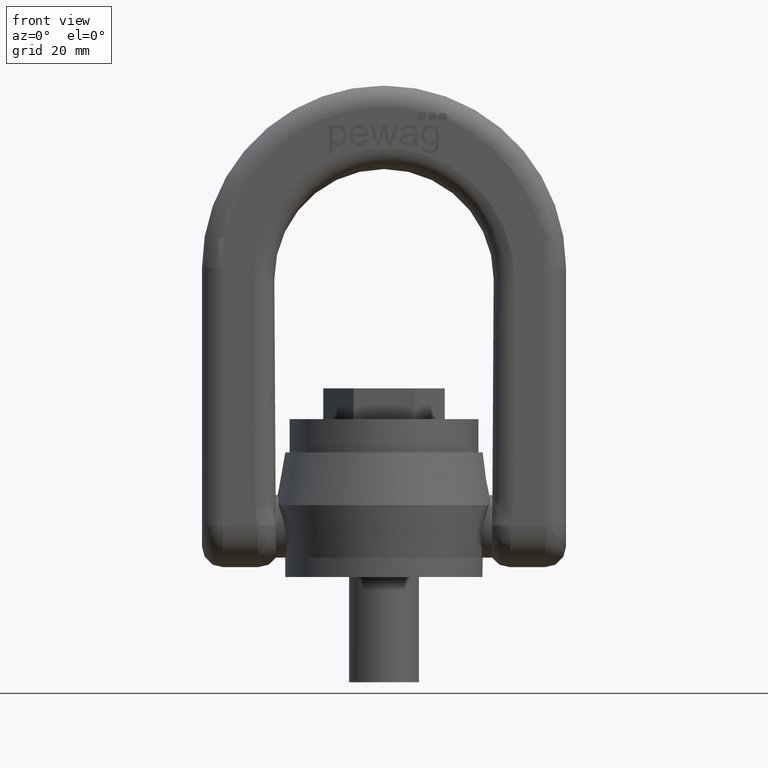
[diagram: clean part render]
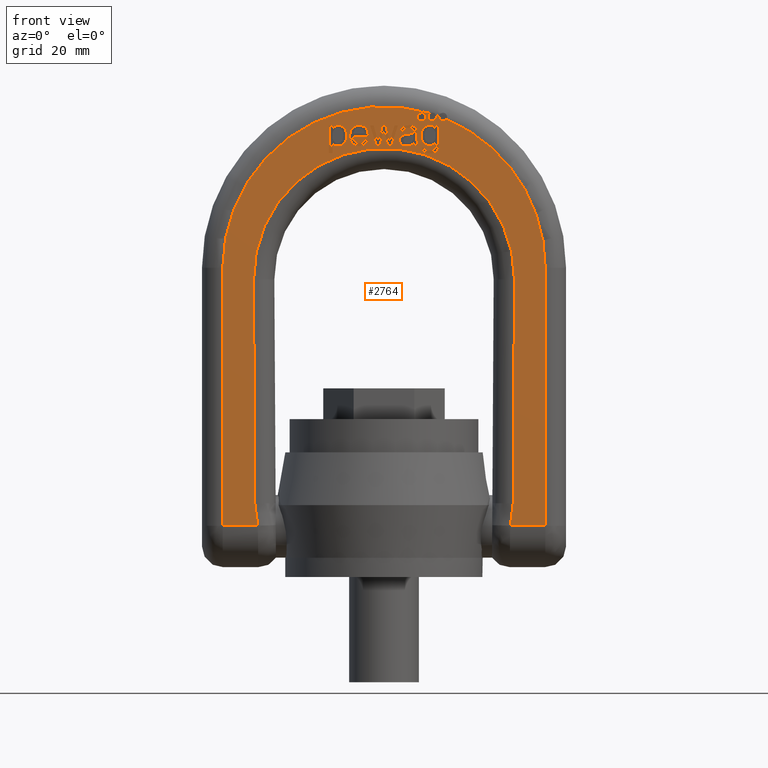
[diagram: same view with one face highlighted and labeled with its STEP entity id]
A machine part, front view. The second image highlights one B-rep face of the part: STEP entity #2764.
In plain terms, the highlighted planar face has unit normal (0, 1, 0).
Its self-contained STEP definition (entity closure, byte-faithful):
#321=B_SPLINE_CURVE_WITH_KNOTS('',3,(#6730,#6731,#6732,#6733),
 .UNSPECIFIED.,.F.,.F.,(4,4),(0.,1.),.UNSPECIFIED.);
#322=B_SPLINE_CURVE_WITH_KNOTS('',3,(#6738,#6739,#6740,#6741),
 .UNSPECIFIED.,.F.,.F.,(4,4),(0.,1.),.UNSPECIFIED.);
#323=B_SPLINE_CURVE_WITH_KNOTS('',3,(#6743,#6744,#6745,#6746,#6747,#6748,
#6749,#6750,#6751,#6752),.UNSPECIFIED.,.F.,.F.,(4,2,2,2,4),(0.,0.228358481914092,
0.466434346037297,0.703045305681472,1.),.UNSPECIFIED.);
#324=B_SPLINE_CURVE_WITH_KNOTS('',3,(#6754,#6755,#6756,#6757),
 .UNSPECIFIED.,.F.,.F.,(4,4),(0.,1.),.UNSPECIFIED.);
#325=B_SPLINE_CURVE_WITH_KNOTS('',3,(#6761,#6762,#6763,#6764),
 .UNSPECIFIED.,.F.,.F.,(4,4),(0.,1.),.UNSPECIFIED.);
#326=B_SPLINE_CURVE_WITH_KNOTS('',3,(#6766,#6767,#6768,#6769),
 .UNSPECIFIED.,.F.,.F.,(4,4),(0.,1.),.UNSPECIFIED.);
#327=B_SPLINE_CURVE_WITH_KNOTS('',3,(#6771,#6772,#6773,#6774),
 .UNSPECIFIED.,.F.,.F.,(4,4),(0.,1.),.UNSPECIFIED.);
#328=B_SPLINE_CURVE_WITH_KNOTS('',3,(#6776,#6777,#6778,#6779),
 .UNSPECIFIED.,.F.,.F.,(4,4),(0.,1.),.UNSPECIFIED.);
#329=B_SPLINE_CURVE_WITH_KNOTS('',3,(#6781,#6782,#6783,#6784,#6785,#6786),
 .UNSPECIFIED.,.F.,.F.,(4,2,4),(0.,0.559782608695651,1.),.UNSPECIFIED.);
#330=B_SPLINE_CURVE_WITH_KNOTS('',3,(#6788,#6789,#6790,#6791),
 .UNSPECIFIED.,.F.,.F.,(4,4),(0.,1.),.UNSPECIFIED.);
#331=B_SPLINE_CURVE_WITH_KNOTS('',3,(#6795,#6796,#6797,#6798),
 .UNSPECIFIED.,.F.,.F.,(4,4),(0.,1.),.UNSPECIFIED.);
#332=B_SPLINE_CURVE_WITH_KNOTS('',3,(#6800,#6801,#6802,#6803,#6804,#6805),
 .UNSPECIFIED.,.F.,.F.,(4,2,4),(0.,0.476123595505616,1.),.UNSPECIFIED.);
#333=B_SPLINE_CURVE_WITH_KNOTS('',3,(#6807,#6808,#6809,#6810),
 .UNSPECIFIED.,.F.,.F.,(4,4),(0.,1.),.UNSPECIFIED.);
#334=B_SPLINE_CURVE_WITH_KNOTS('',3,(#6812,#6813,#6814,#6815,#6816,#6817,
#6818,#6819),.UNSPECIFIED.,.F.,.F.,(4,2,2,4),(0.,0.47235576923076,0.730769230769225,
1.),.UNSPECIFIED.);
#335=B_SPLINE_CURVE_WITH_KNOTS('',3,(#6823,#6824,#6825,#6826),
 .UNSPECIFIED.,.F.,.F.,(4,4),(0.,1.),.UNSPECIFIED.);
#336=B_SPLINE_CURVE_WITH_KNOTS('',3,(#6828,#6829,#6830,#6831),
 .UNSPECIFIED.,.F.,.F.,(4,4),(0.,1.),.UNSPECIFIED.);
#337=B_SPLINE_CURVE_WITH_KNOTS('',3,(#6833,#6834,#6835,#6836,#6837,#6838,
#6839,#6840,#6841,#6842),.UNSPECIFIED.,.F.,.F.,(4,2,2,2,4),(0.,0.230139294836346,
0.492074150143503,0.754009005450665,1.),.UNSPECIFIED.);
#338=B_SPLINE_CURVE_WITH_KNOTS('',3,(#6860,#6861,#6862,#6863,#6864,#6865),
 .UNSPECIFIED.,.F.,.F.,(4,2,4),(0.,0.329498767460973,1.),.UNSPECIFIED.);
#339=B_SPLINE_CURVE_WITH_KNOTS('',3,(#6867,#6868,#6869,#6870,#6871,#6872,
#6873,#6874),.UNSPECIFIED.,.F.,.F.,(4,2,2,4),(0.,0.361028692437345,0.681441656975489,
1.),.UNSPECIFIED.);
#340=B_SPLINE_CURVE_WITH_KNOTS('',3,(#6876,#6877,#6878,#6879),
 .UNSPECIFIED.,.F.,.F.,(4,4),(0.,1.),.UNSPECIFIED.);
#341=B_SPLINE_CURVE_WITH_KNOTS('',3,(#6883,#6884,#6885,#6886),
 .UNSPECIFIED.,.F.,.F.,(4,4),(0.,1.),.UNSPECIFIED.);
#342=B_SPLINE_CURVE_WITH_KNOTS('',3,(#6888,#6889,#6890,#6891,#6892,#6893),
 .UNSPECIFIED.,.F.,.F.,(4,2,4),(0.,0.555803571428577,1.),.UNSPECIFIED.);
#343=B_SPLINE_CURVE_WITH_KNOTS('',3,(#6895,#6896,#6897,#6898,#6899,#6900),
 .UNSPECIFIED.,.F.,.F.,(4,2,4),(0.,0.500000000000002,1.),.UNSPECIFIED.);
#344=B_SPLINE_CURVE_WITH_KNOTS('',3,(#6902,#6903,#6904,#6905,#6906,#6907,
#6908,#6909,#6910,#6911,#6912,#6913,#6914,#6915),.UNSPECIFIED.,.F.,.F.,
(4,2,2,2,2,2,4),(0.,0.15220134604599,0.327187324733594,0.502173303421195,
0.676318003365109,0.850462703309027,1.),.UNSPECIFIED.);
#345=B_SPLINE_CURVE_WITH_KNOTS('',3,(#6920,#6921,#6922,#6923),
 .UNSPECIFIED.,.F.,.F.,(4,4),(0.,1.),.UNSPECIFIED.);
#346=B_SPLINE_CURVE_WITH_KNOTS('',3,(#6931,#6932,#6933,#6934),
 .UNSPECIFIED.,.F.,.F.,(4,4),(0.,1.),.UNSPECIFIED.);
#347=B_SPLINE_CURVE_WITH_KNOTS('',3,(#6948,#6949,#6950,#6951),
 .UNSPECIFIED.,.F.,.F.,(4,4),(0.,1.),.UNSPECIFIED.);
#348=B_SPLINE_CURVE_WITH_KNOTS('',3,(#6956,#6957,#6958,#6959),
 .UNSPECIFIED.,.F.,.F.,(4,4),(0.,1.),.UNSPECIFIED.);
#349=B_SPLINE_CURVE_WITH_KNOTS('',3,(#6961,#6962,#6963,#6964,#6965,#6966),
 .UNSPECIFIED.,.F.,.F.,(4,2,4),(0.,0.434679334916864,1.),.UNSPECIFIED.);
#350=B_SPLINE_CURVE_WITH_KNOTS('',3,(#6968,#6969,#6970,#6971),
 .UNSPECIFIED.,.F.,.F.,(4,4),(0.,1.),.UNSPECIFIED.);
#351=B_SPLINE_CURVE_WITH_KNOTS('',3,(#6975,#6976,#6977,#6978),
 .UNSPECIFIED.,.F.,.F.,(4,4),(0.,1.),.UNSPECIFIED.);
#352=B_SPLINE_CURVE_WITH_KNOTS('',3,(#6980,#6981,#6982,#6983,#6984,#6985),
 .UNSPECIFIED.,.F.,.F.,(4,2,4),(0.,0.570469798657718,1.),.UNSPECIFIED.);
#353=B_SPLINE_CURVE_WITH_KNOTS('',3,(#6987,#6988,#6989,#6990,#6991,#6992,
#6993,#6994,#6995,#6996,#6997,#6998),.UNSPECIFIED.,.F.,.F.,(4,2,2,2,2,4),
(0.,0.122570626594234,0.245141253188471,0.49563753375242,0.746133814316365,
1.),.UNSPECIFIED.);
#354=B_SPLINE_CURVE_WITH_KNOTS('',3,(#7008,#7009,#7010,#7011),
 .UNSPECIFIED.,.F.,.F.,(4,4),(0.,1.),.UNSPECIFIED.);
#355=B_SPLINE_CURVE_WITH_KNOTS('',3,(#7013,#7014,#7015,#7016),
 .UNSPECIFIED.,.F.,.F.,(4,4),(0.,1.),.UNSPECIFIED.);
#356=B_SPLINE_CURVE_WITH_KNOTS('',3,(#7038,#7039,#7040,#7041),
 .UNSPECIFIED.,.F.,.F.,(4,4),(0.,1.),.UNSPECIFIED.);
#1791=LINE('',#6694,#2073);
#1794=LINE('',#6726,#2076);
#1795=LINE('',#6736,#2077);
#1796=LINE('',#6759,#2078);
#1797=LINE('',#6793,#2079);
#1798=LINE('',#6820,#2080);
#1799=LINE('',#6844,#2081);
#1800=LINE('',#6846,#2082);
#1801=LINE('',#6848,#2083);
#1802=LINE('',#6850,#2084);
#1803=LINE('',#6852,#2085);
#1804=LINE('',#6854,#2086);
#1805=LINE('',#6857,#2087);
#1806=LINE('',#6881,#2088);
#1807=LINE('',#6917,#2089);
#1808=LINE('',#6919,#2090);
#1809=LINE('',#6925,#2091);
#1810=LINE('',#6929,#2092);
#1811=LINE('',#6935,#2093);
#1812=LINE('',#6947,#2094);
#1813=LINE('',#6954,#2095);
#1814=LINE('',#6973,#2096);
#1815=LINE('',#6999,#2097);
#1816=LINE('',#7002,#2098);
#1817=LINE('',#7004,#2099);
#1818=LINE('',#7006,#2100);
#1819=LINE('',#7018,#2101);
#1820=LINE('',#7020,#2102);
#1821=LINE('',#7022,#2103);
#1822=LINE('',#7024,#2104);
#1823=LINE('',#7026,#2105);
#1824=LINE('',#7028,#2106);
#1825=LINE('',#7030,#2107);
#1826=LINE('',#7032,#2108);
#1827=LINE('',#7034,#2109);
#1828=LINE('',#7036,#2110);
#1829=LINE('',#7043,#2111);
#1830=LINE('',#7045,#2112);
#2073=VECTOR('',#5908,1.);
#2076=VECTOR('',#5915,1.);
#2077=VECTOR('',#5920,1.);
#2078=VECTOR('',#5921,1.);
#2079=VECTOR('',#5922,1.);
#2080=VECTOR('',#5923,1.);
#2081=VECTOR('',#5924,1.);
#2082=VECTOR('',#5925,1.);
#2083=VECTOR('',#5926,1.);
#2084=VECTOR('',#5927,1.);
#2085=VECTOR('',#5928,1.);
#2086=VECTOR('',#5929,1.);
#2087=VECTOR('',#5932,1.);
#2088=VECTOR('',#5933,1.);
#2089=VECTOR('',#5934,1.);
#2090=VECTOR('',#5935,1.);
#2091=VECTOR('',#5936,1.);
#2092=VECTOR('',#5939,1.);
#2093=VECTOR('',#5940,1.);
#2094=VECTOR('',#5951,1.);
#2095=VECTOR('',#5952,1.);
#2096=VECTOR('',#5953,1.);
#2097=VECTOR('',#5954,1.);
#2098=VECTOR('',#5955,1.);
#2099=VECTOR('',#5956,1.);
#2100=VECTOR('',#5957,1.);
#2101=VECTOR('',#5958,1.);
#2102=VECTOR('',#5959,1.);
#2103=VECTOR('',#5960,1.);
#2104=VECTOR('',#5961,1.);
#2105=VECTOR('',#5962,1.);
#2106=VECTOR('',#5963,1.);
#2107=VECTOR('',#5964,1.);
#2108=VECTOR('',#5965,1.);
#2109=VECTOR('',#5966,1.);
#2110=VECTOR('',#5967,1.);
#2111=VECTOR('',#5968,1.);
#2112=VECTOR('',#5969,1.);
#2643=PLANE('',#5644);
#2764=ADVANCED_FACE('',(#3019,#3020,#3021,#3022,#3023,#3024,#3025),#2643,
 .F.);
#3019=FACE_BOUND('',#3097,.T.);
#3020=FACE_BOUND('',#3098,.T.);
#3021=FACE_BOUND('',#3099,.T.);
#3022=FACE_BOUND('',#3100,.T.);
#3023=FACE_BOUND('',#3101,.T.);
#3024=FACE_BOUND('',#3102,.T.);
#3025=FACE_BOUND('',#3103,.T.);
#3097=EDGE_LOOP('',(#3435,#3436,#3437,#3438,#3439,#3440,#3441,#3442,#3443,
#3444,#3445,#3446,#3447,#3448,#3449,#3450,#3451));
#3098=EDGE_LOOP('',(#3452,#3453,#3454,#3455,#3456,#3457,#3458,#3459,#3460,
#3461));
#3099=EDGE_LOOP('',(#3462));
#3100=EDGE_LOOP('',(#3463,#3464,#3465,#3466,#3467,#3468,#3469,#3470,#3471,
#3472,#3473));
#3101=EDGE_LOOP('',(#3474,#3475,#3476,#3477,#3478,#3479,#3480,#3481,#3482,
#3483,#3484,#3485,#3486,#3487));
#3102=EDGE_LOOP('',(#3488,#3489,#3490,#3491,#3492,#3493,#3494,#3495,#3496));
#3103=EDGE_LOOP('',(#3497,#3498,#3499,#3500,#3501,#3502,#3503,#3504,#3505,
#3506,#3507,#3508,#3509,#3510,#3511,#3512,#3513,#3514,#3515));
#3435=ORIENTED_EDGE('',*,*,#4995,.F.);
#3436=ORIENTED_EDGE('',*,*,#4996,.F.);
#3437=ORIENTED_EDGE('',*,*,#4997,.F.);
#3438=ORIENTED_EDGE('',*,*,#4998,.F.);
#3439=ORIENTED_EDGE('',*,*,#4999,.F.);
#3440=ORIENTED_EDGE('',*,*,#5000,.F.);
#3441=ORIENTED_EDGE('',*,*,#5001,.F.);
#3442=ORIENTED_EDGE('',*,*,#5002,.F.);
#3443=ORIENTED_EDGE('',*,*,#5003,.F.);
#3444=ORIENTED_EDGE('',*,*,#5004,.F.);
#3445=ORIENTED_EDGE('',*,*,#5005,.F.);
#3446=ORIENTED_EDGE('',*,*,#5006,.F.);
#3447=ORIENTED_EDGE('',*,*,#5007,.F.);
#3448=ORIENTED_EDGE('',*,*,#5008,.F.);
#3449=ORIENTED_EDGE('',*,*,#5009,.F.);
#3450=ORIENTED_EDGE('',*,*,#5010,.F.);
#3451=ORIENTED_EDGE('',*,*,#5011,.F.);
#3452=ORIENTED_EDGE('',*,*,#5012,.F.);
#3453=ORIENTED_EDGE('',*,*,#5013,.F.);
#3454=ORIENTED_EDGE('',*,*,#5014,.F.);
#3455=ORIENTED_EDGE('',*,*,#5015,.F.);
#3456=ORIENTED_EDGE('',*,*,#5016,.F.);
#3457=ORIENTED_EDGE('',*,*,#5017,.F.);
#3458=ORIENTED_EDGE('',*,*,#5018,.F.);
#3459=ORIENTED_EDGE('',*,*,#5019,.F.);
#3460=ORIENTED_EDGE('',*,*,#5020,.F.);
#3461=ORIENTED_EDGE('',*,*,#5021,.F.);
#3462=ORIENTED_EDGE('',*,*,#5022,.F.);
#3463=ORIENTED_EDGE('',*,*,#5023,.F.);
#3464=ORIENTED_EDGE('',*,*,#5024,.F.);
#3465=ORIENTED_EDGE('',*,*,#5025,.F.);
#3466=ORIENTED_EDGE('',*,*,#5026,.F.);
#3467=ORIENTED_EDGE('',*,*,#5027,.F.);
#3468=ORIENTED_EDGE('',*,*,#5028,.F.);
#3469=ORIENTED_EDGE('',*,*,#5029,.F.);
#3470=ORIENTED_EDGE('',*,*,#5030,.F.);
#3471=ORIENTED_EDGE('',*,*,#5031,.F.);
#3472=ORIENTED_EDGE('',*,*,#5032,.F.);
#3473=ORIENTED_EDGE('',*,*,#5033,.F.);
#3474=ORIENTED_EDGE('',*,*,#4993,.T.);
#3475=ORIENTED_EDGE('',*,*,#5034,.T.);
#3476=ORIENTED_EDGE('',*,*,#5035,.T.);
#3477=ORIENTED_EDGE('',*,*,#5036,.T.);
#3478=ORIENTED_EDGE('',*,*,#5037,.T.);
#3479=ORIENTED_EDGE('',*,*,#5038,.T.);
#3480=ORIENTED_EDGE('',*,*,#4987,.T.);
#3481=ORIENTED_EDGE('',*,*,#5039,.T.);
#3482=ORIENTED_EDGE('',*,*,#5040,.T.);
#3483=ORIENTED_EDGE('',*,*,#5041,.F.);
#3484=ORIENTED_EDGE('',*,*,#5042,.T.);
#3485=ORIENTED_EDGE('',*,*,#5043,.F.);
#3486=ORIENTED_EDGE('',*,*,#5044,.T.);
#3487=ORIENTED_EDGE('',*,*,#5045,.T.);
#3488=ORIENTED_EDGE('',*,*,#5046,.F.);
#3489=ORIENTED_EDGE('',*,*,#5047,.F.);
#3490=ORIENTED_EDGE('',*,*,#5048,.F.);
#3491=ORIENTED_EDGE('',*,*,#5049,.F.);
#3492=ORIENTED_EDGE('',*,*,#5050,.F.);
#3493=ORIENTED_EDGE('',*,*,#5051,.F.);
#3494=ORIENTED_EDGE('',*,*,#5052,.F.);
#3495=ORIENTED_EDGE('',*,*,#5053,.F.);
#3496=ORIENTED_EDGE('',*,*,#5054,.F.);
#3497=ORIENTED_EDGE('',*,*,#5055,.F.);
#3498=ORIENTED_EDGE('',*,*,#5056,.F.);
#3499=ORIENTED_EDGE('',*,*,#5057,.F.);
#3500=ORIENTED_EDGE('',*,*,#5058,.F.);
#3501=ORIENTED_EDGE('',*,*,#5059,.F.);
#3502=ORIENTED_EDGE('',*,*,#5060,.F.);
#3503=ORIENTED_EDGE('',*,*,#5061,.F.);
#3504=ORIENTED_EDGE('',*,*,#5062,.F.);
#3505=ORIENTED_EDGE('',*,*,#5063,.F.);
#3506=ORIENTED_EDGE('',*,*,#5064,.F.);
#3507=ORIENTED_EDGE('',*,*,#5065,.F.);
#3508=ORIENTED_EDGE('',*,*,#5066,.F.);
#3509=ORIENTED_EDGE('',*,*,#5067,.F.);
#3510=ORIENTED_EDGE('',*,*,#5068,.F.);
#3511=ORIENTED_EDGE('',*,*,#5069,.F.);
#3512=ORIENTED_EDGE('',*,*,#5070,.F.);
#3513=ORIENTED_EDGE('',*,*,#5071,.F.);
#3514=ORIENTED_EDGE('',*,*,#5072,.F.);
#3515=ORIENTED_EDGE('',*,*,#5073,.F.);
#4575=VERTEX_POINT('',#6695);
#4576=VERTEX_POINT('',#6696);
#4581=VERTEX_POINT('',#6725);
#4582=VERTEX_POINT('',#6727);
#4583=VERTEX_POINT('',#6734);
#4584=VERTEX_POINT('',#6735);
#4585=VERTEX_POINT('',#6737);
#4586=VERTEX_POINT('',#6742);
#4587=VERTEX_POINT('',#6753);
#4588=VERTEX_POINT('',#6758);
#4589=VERTEX_POINT('',#6760);
#4590=VERTEX_POINT('',#6765);
#4591=VERTEX_POINT('',#6770);
#4592=VERTEX_POINT('',#6775);
#4593=VERTEX_POINT('',#6780);
#4594=VERTEX_POINT('',#6787);
#4595=VERTEX_POINT('',#6792);
#4596=VERTEX_POINT('',#6794);
#4597=VERTEX_POINT('',#6799);
#4598=VERTEX_POINT('',#6806);
#4599=VERTEX_POINT('',#6811);
#4600=VERTEX_POINT('',#6821);
#4601=VERTEX_POINT('',#6822);
#4602=VERTEX_POINT('',#6827);
#4603=VERTEX_POINT('',#6832);
#4604=VERTEX_POINT('',#6843);
#4605=VERTEX_POINT('',#6845);
#4606=VERTEX_POINT('',#6847);
#4607=VERTEX_POINT('',#6849);
#4608=VERTEX_POINT('',#6851);
#4609=VERTEX_POINT('',#6853);
#4610=VERTEX_POINT('',#6856);
#4611=VERTEX_POINT('',#6858);
#4612=VERTEX_POINT('',#6859);
#4613=VERTEX_POINT('',#6866);
#4614=VERTEX_POINT('',#6875);
#4615=VERTEX_POINT('',#6880);
#4616=VERTEX_POINT('',#6882);
#4617=VERTEX_POINT('',#6887);
#4618=VERTEX_POINT('',#6894);
#4619=VERTEX_POINT('',#6901);
#4620=VERTEX_POINT('',#6916);
#4621=VERTEX_POINT('',#6918);
#4622=VERTEX_POINT('',#6924);
#4623=VERTEX_POINT('',#6926);
#4624=VERTEX_POINT('',#6928);
#4625=VERTEX_POINT('',#6930);
#4626=VERTEX_POINT('',#6936);
#4627=VERTEX_POINT('',#6938);
#4628=VERTEX_POINT('',#6940);
#4629=VERTEX_POINT('',#6942);
#4630=VERTEX_POINT('',#6944);
#4631=VERTEX_POINT('',#6946);
#4632=VERTEX_POINT('',#6952);
#4633=VERTEX_POINT('',#6953);
#4634=VERTEX_POINT('',#6955);
#4635=VERTEX_POINT('',#6960);
#4636=VERTEX_POINT('',#6967);
#4637=VERTEX_POINT('',#6972);
#4638=VERTEX_POINT('',#6974);
#4639=VERTEX_POINT('',#6979);
#4640=VERTEX_POINT('',#6986);
#4641=VERTEX_POINT('',#7000);
#4642=VERTEX_POINT('',#7001);
#4643=VERTEX_POINT('',#7003);
#4644=VERTEX_POINT('',#7005);
#4645=VERTEX_POINT('',#7007);
#4646=VERTEX_POINT('',#7012);
#4647=VERTEX_POINT('',#7017);
#4648=VERTEX_POINT('',#7019);
#4649=VERTEX_POINT('',#7021);
#4650=VERTEX_POINT('',#7023);
#4651=VERTEX_POINT('',#7025);
#4652=VERTEX_POINT('',#7027);
#4653=VERTEX_POINT('',#7029);
#4654=VERTEX_POINT('',#7031);
#4655=VERTEX_POINT('',#7033);
#4656=VERTEX_POINT('',#7035);
#4657=VERTEX_POINT('',#7037);
#4658=VERTEX_POINT('',#7042);
#4659=VERTEX_POINT('',#7044);
#4987=EDGE_CURVE('',#4575,#4576,#1791,.T.);
#4993=EDGE_CURVE('',#4582,#4581,#1794,.T.);
#4995=EDGE_CURVE('',#4583,#4584,#321,.T.);
#4996=EDGE_CURVE('',#4585,#4583,#1795,.T.);
#4997=EDGE_CURVE('',#4586,#4585,#322,.T.);
#4998=EDGE_CURVE('',#4587,#4586,#323,.T.);
#4999=EDGE_CURVE('',#4588,#4587,#324,.T.);
#5000=EDGE_CURVE('',#4589,#4588,#1796,.T.);
#5001=EDGE_CURVE('',#4590,#4589,#325,.T.);
#5002=EDGE_CURVE('',#4591,#4590,#326,.T.);
#5003=EDGE_CURVE('',#4592,#4591,#327,.T.);
#5004=EDGE_CURVE('',#4593,#4592,#328,.T.);
#5005=EDGE_CURVE('',#4594,#4593,#329,.T.);
#5006=EDGE_CURVE('',#4595,#4594,#330,.T.);
#5007=EDGE_CURVE('',#4596,#4595,#1797,.T.);
#5008=EDGE_CURVE('',#4597,#4596,#331,.T.);
#5009=EDGE_CURVE('',#4598,#4597,#332,.T.);
#5010=EDGE_CURVE('',#4599,#4598,#333,.T.);
#5011=EDGE_CURVE('',#4584,#4599,#334,.T.);
#5012=EDGE_CURVE('',#4600,#4601,#1798,.T.);
#5013=EDGE_CURVE('',#4602,#4600,#335,.T.);
#5014=EDGE_CURVE('',#4603,#4602,#336,.T.);
#5015=EDGE_CURVE('',#4604,#4603,#337,.T.);
#5016=EDGE_CURVE('',#4605,#4604,#1799,.T.);
#5017=EDGE_CURVE('',#4606,#4605,#1800,.T.);
#5018=EDGE_CURVE('',#4607,#4606,#1801,.T.);
#5019=EDGE_CURVE('',#4608,#4607,#1802,.T.);
#5020=EDGE_CURVE('',#4609,#4608,#1803,.T.);
#5021=EDGE_CURVE('',#4601,#4609,#1804,.T.);
#5022=EDGE_CURVE('',#4610,#4610,#5555,.T.);
#5023=EDGE_CURVE('',#4611,#4612,#1805,.T.);
#5024=EDGE_CURVE('',#4613,#4611,#338,.T.);
#5025=EDGE_CURVE('',#4614,#4613,#339,.T.);
#5026=EDGE_CURVE('',#4615,#4614,#340,.T.);
#5027=EDGE_CURVE('',#4616,#4615,#1806,.T.);
#5028=EDGE_CURVE('',#4617,#4616,#341,.T.);
#5029=EDGE_CURVE('',#4618,#4617,#342,.T.);
#5030=EDGE_CURVE('',#4619,#4618,#343,.T.);
#5031=EDGE_CURVE('',#4620,#4619,#344,.T.);
#5032=EDGE_CURVE('',#4621,#4620,#1807,.T.);
#5033=EDGE_CURVE('',#4612,#4621,#1808,.T.);
#5034=EDGE_CURVE('',#4581,#4622,#345,.T.);
#5035=EDGE_CURVE('',#4622,#4623,#1809,.T.);
#5036=EDGE_CURVE('',#4623,#4624,#5556,.T.);
#5037=EDGE_CURVE('',#4624,#4625,#1810,.T.);
#5038=EDGE_CURVE('',#4625,#4575,#346,.T.);
#5039=EDGE_CURVE('',#4576,#4626,#1811,.T.);
#5040=EDGE_CURVE('',#4626,#4627,#5557,.T.);
#5041=EDGE_CURVE('',#4628,#4627,#5558,.T.);
#5042=EDGE_CURVE('',#4628,#4629,#5559,.T.);
#5043=EDGE_CURVE('',#4630,#4629,#5560,.T.);
#5044=EDGE_CURVE('',#4630,#4631,#5561,.T.);
#5045=EDGE_CURVE('',#4631,#4582,#1812,.T.);
#5046=EDGE_CURVE('',#4632,#4633,#347,.T.);
#5047=EDGE_CURVE('',#4634,#4632,#1813,.T.);
#5048=EDGE_CURVE('',#4635,#4634,#348,.T.);
#5049=EDGE_CURVE('',#4636,#4635,#349,.T.);
#5050=EDGE_CURVE('',#4637,#4636,#350,.T.);
#5051=EDGE_CURVE('',#4638,#4637,#1814,.T.);
#5052=EDGE_CURVE('',#4639,#4638,#351,.T.);
#5053=EDGE_CURVE('',#4640,#4639,#352,.T.);
#5054=EDGE_CURVE('',#4633,#4640,#353,.T.);
#5055=EDGE_CURVE('',#4641,#4642,#1815,.T.);
#5056=EDGE_CURVE('',#4643,#4641,#1816,.T.);
#5057=EDGE_CURVE('',#4644,#4643,#1817,.T.);
#5058=EDGE_CURVE('',#4645,#4644,#1818,.T.);
#5059=EDGE_CURVE('',#4646,#4645,#354,.T.);
#5060=EDGE_CURVE('',#4647,#4646,#355,.T.);
#5061=EDGE_CURVE('',#4648,#4647,#1819,.T.);
#5062=EDGE_CURVE('',#4649,#4648,#1820,.T.);
#5063=EDGE_CURVE('',#4650,#4649,#1821,.T.);
#5064=EDGE_CURVE('',#4651,#4650,#1822,.T.);
#5065=EDGE_CURVE('',#4652,#4651,#1823,.T.);
#5066=EDGE_CURVE('',#4653,#4652,#1824,.T.);
#5067=EDGE_CURVE('',#4654,#4653,#1825,.T.);
#5068=EDGE_CURVE('',#4655,#4654,#1826,.T.);
#5069=EDGE_CURVE('',#4656,#4655,#1827,.T.);
#5070=EDGE_CURVE('',#4657,#4656,#1828,.T.);
#5071=EDGE_CURVE('',#4658,#4657,#356,.T.);
#5072=EDGE_CURVE('',#4659,#4658,#1829,.T.);
#5073=EDGE_CURVE('',#4642,#4659,#1830,.T.);
#5555=CIRCLE('',#5637,0.9375);
#5556=CIRCLE('',#5638,29.75);
#5557=CIRCLE('',#5639,36.75);
#5558=CIRCLE('',#5640,0.9375);
#5559=CIRCLE('',#5641,36.75);
#5560=CIRCLE('',#5642,0.9375);
#5561=CIRCLE('',#5643,36.75);
#5637=AXIS2_PLACEMENT_3D('',#6855,#5930,#5931);
#5638=AXIS2_PLACEMENT_3D('',#6927,#5937,#5938);
#5639=AXIS2_PLACEMENT_3D('',#6937,#5941,#5942);
#5640=AXIS2_PLACEMENT_3D('',#6939,#5943,#5944);
#5641=AXIS2_PLACEMENT_3D('',#6941,#5945,#5946);
#5642=AXIS2_PLACEMENT_3D('',#6943,#5947,#5948);
#5643=AXIS2_PLACEMENT_3D('',#6945,#5949,#5950);
#5644=AXIS2_PLACEMENT_3D('',#7046,#5970,#5971);
#5908=DIRECTION('',(1.,0.,-1.44314929616228E-15));
#5915=DIRECTION('',(1.,0.,-1.12861527352708E-15));
#5920=DIRECTION('',(1.,0.,0.));
#5921=DIRECTION('',(-0.989370262977938,0.,-0.145418302613414));
#5922=DIRECTION('',(0.991928985003783,0.,-0.126794671454937));
#5923=DIRECTION('',(-1.,0.,0.));
#5924=DIRECTION('',(1.,0.,0.));
#5925=DIRECTION('',(0.,0.,1.));
#5926=DIRECTION('',(1.,0.,0.));
#5927=DIRECTION('',(0.,0.,-1.));
#5928=DIRECTION('',(-1.,0.,0.));
#5929=DIRECTION('',(0.,0.,1.));
#5930=DIRECTION('',(0.,-1.,0.));
#5931=DIRECTION('',(0.,0.,0.999999999999994));
#5932=DIRECTION('',(-1.,0.,0.));
#5933=DIRECTION('',(-0.988666662925713,0.,0.150127377980618));
#5934=DIRECTION('',(-1.,0.,0.));
#5935=DIRECTION('',(0.,0.,-1.));
#5936=DIRECTION('',(-0.00584341179519027,0.,0.999982927123555));
#5937=DIRECTION('',(0.,1.,0.));
#5938=DIRECTION('',(0.,0.,1.));
#5939=DIRECTION('',(-0.00584341179519027,0.,-0.999982927123555));
#5940=DIRECTION('',(-4.06377388222971E-16,0.,1.));
#5941=DIRECTION('',(0.,-1.,0.));
#5942=DIRECTION('',(0.,0.,1.));
#5943=DIRECTION('',(0.,-1.,0.));
#5944=DIRECTION('',(0.,0.,0.999999999999994));
#5945=DIRECTION('',(0.,-1.,0.));
#5946=DIRECTION('',(0.,0.,1.));
#5947=DIRECTION('',(0.,-1.,0.));
#5948=DIRECTION('',(0.,0.,0.999999999999994));
#5949=DIRECTION('',(0.,-1.,0.));
#5950=DIRECTION('',(0.,0.,1.));
#5951=DIRECTION('',(-4.06377388222971E-16,0.,-1.));
#5952=DIRECTION('',(1.,0.,0.));
#5953=DIRECTION('',(-0.992687288142565,0.,0.120714323757207));
#5954=DIRECTION('',(-1.,0.,0.));
#5955=DIRECTION('',(0.304245570453574,0.,0.952593634693923));
#5956=DIRECTION('',(1.,0.,0.));
#5957=DIRECTION('',(0.259135455314435,0.,-0.965840988879112));
#5958=DIRECTION('',(1.,0.,0.));
#5959=DIRECTION('',(0.254367653151691,0.,0.967107593305988));
#5960=DIRECTION('',(1.,0.,0.));
#5961=DIRECTION('',(0.298320908470944,0.,-0.954465628280595));
#5962=DIRECTION('',(-1.,0.,0.));
#5963=DIRECTION('',(-0.269463722620021,0.,0.963010541059526));
#5964=DIRECTION('',(-0.247736970080357,0.,-0.968827329122896));
#5965=DIRECTION('',(-0.26605956351618,0.,-0.963956590652079));
#5966=DIRECTION('',(-1.,0.,0.));
#5967=DIRECTION('',(-0.253070161005815,0.,0.96744792811215));
#5968=DIRECTION('',(-1.,0.,0.));
#5969=DIRECTION('',(-0.287282618696351,0.,-0.957845862858407));
#5970=DIRECTION('',(0.,1.,0.));
#5971=DIRECTION('',(0.,0.,1.));
#6694=CARTESIAN_POINT('',(-8.12493053739366E-14,-9.5,11.7));
#6695=CARTESIAN_POINT('',(28.7875321066015,-9.5,11.7));
#6696=CARTESIAN_POINT('',(36.75,-9.5,11.7));
#6725=CARTESIAN_POINT('',(-28.7875321066015,-9.5,11.7));
#6726=CARTESIAN_POINT('',(-6.35410398995745E-14,-9.5,11.7));
#6727=CARTESIAN_POINT('',(-36.75,-9.5,11.7000000000001));
#6730=CARTESIAN_POINT('',(7.78047113945468,-9.5,98.3333333333333));
#6731=CARTESIAN_POINT('',(7.66171015813107,-9.5,98.5379892555641));
#6732=CARTESIAN_POINT('',(7.59012819678533,-9.5,98.7474418009721));
#6733=CARTESIAN_POINT('',(7.56572525541746,-9.5,98.9616909695574));
#6734=CARTESIAN_POINT('',(7.78047113945468,-9.5,98.3333333333333));
#6735=CARTESIAN_POINT('',(7.56572525541746,-9.5,98.9616909695574));
#6736=CARTESIAN_POINT('',(0.,-9.5,98.3333333333333));
#6737=CARTESIAN_POINT('',(6.96053230949438,-9.5,98.3333333333333));
#6738=CARTESIAN_POINT('',(6.79947289646646,-9.5,98.8913404962906));
#6739=CARTESIAN_POINT('',(6.83038328886576,-9.5,98.661102583781));
#6740=CARTESIAN_POINT('',(6.88406975987507,-9.5,98.4756331542594));
#6741=CARTESIAN_POINT('',(6.96053230949438,-9.5,98.3333333333333));
#6742=CARTESIAN_POINT('',(6.79947289646646,-9.5,98.8913404962906));
#6743=CARTESIAN_POINT('',(3.93782130539469,-9.5,100.45823740087));
#6744=CARTESIAN_POINT('',(3.6677620875903,-9.5,100.215208493221));
#6745=CARTESIAN_POINT('',(3.53273247868811,-9.5,99.9066257354822));
#6746=CARTESIAN_POINT('',(3.53273247868811,-9.5,99.1391660271169));
#6747=CARTESIAN_POINT('',(3.67264267586388,-9.5,98.8241877718087));
#6748=CARTESIAN_POINT('',(4.23380541710739,-9.5,98.3460011590625));
#6749=CARTESIAN_POINT('',(4.61784993817922,-9.5,98.2262087490407));
#6750=CARTESIAN_POINT('',(5.71110171145963,-9.5,98.2262087490407));
#6751=CARTESIAN_POINT('',(6.27562308843627,-9.5,98.4484522895881));
#6752=CARTESIAN_POINT('',(6.79947289646646,-9.5,98.8913404962906));
#6753=CARTESIAN_POINT('',(3.93782130539469,-9.5,100.45823740087));
#6754=CARTESIAN_POINT('',(5.34668445369949,-9.5,100.942696341775));
#6755=CARTESIAN_POINT('',(4.67804386021996,-9.5,100.862752622154));
#6756=CARTESIAN_POINT('',(4.20950738595693,-9.5,100.701266308519));
#6757=CARTESIAN_POINT('',(3.93782130539469,-9.5,100.45823740087));
#6758=CARTESIAN_POINT('',(5.34668445369949,-9.5,100.942696341775));
#6759=CARTESIAN_POINT('',(-4.62648596825262,-9.5,99.4768330864262));
#6760=CARTESIAN_POINT('',(6.07551896921976,-9.5,101.049820926068));
#6761=CARTESIAN_POINT('',(6.74741328821501,-9.5,101.206510616526));
#6762=CARTESIAN_POINT('',(6.57008524760852,-9.5,101.144154515221));
#6763=CARTESIAN_POINT('',(6.34720504978201,-9.5,101.091391660271));
#6764=CARTESIAN_POINT('',(6.07551896921976,-9.5,101.049820926068));
#6765=CARTESIAN_POINT('',(6.74741328821501,-9.5,101.206510616526));
#6766=CARTESIAN_POINT('',(6.72626407236286,-9.5,101.694167306216));
#6767=CARTESIAN_POINT('',(6.73927897442573,-9.5,101.599833717063));
#6768=CARTESIAN_POINT('',(6.74741328821501,-9.5,101.436748529036));
#6769=CARTESIAN_POINT('',(6.74741328821501,-9.5,101.206510616526));
#6770=CARTESIAN_POINT('',(6.72626407236286,-9.5,101.694167306216));
#6771=CARTESIAN_POINT('',(6.5977419144921,-9.5,101.991557943208));
#6772=CARTESIAN_POINT('',(6.66769701307999,-9.5,101.889229982093));
#6773=CARTESIAN_POINT('',(6.71162230754214,-9.5,101.790099769762));
#6774=CARTESIAN_POINT('',(6.72626407236286,-9.5,101.694167306216));
#6775=CARTESIAN_POINT('',(6.5977419144921,-9.5,101.991557943208));
#6776=CARTESIAN_POINT('',(6.25772759809983,-9.5,102.237784599642));
#6777=CARTESIAN_POINT('',(6.41390642285418,-9.5,102.175428498337));
#6778=CARTESIAN_POINT('',(6.52615995314636,-9.5,102.093885904323));
#6779=CARTESIAN_POINT('',(6.5977419144921,-9.5,101.991557943208));
#6780=CARTESIAN_POINT('',(6.25772759809983,-9.5,102.237784599642));
#6781=CARTESIAN_POINT('',(4.83259582221645,-9.5,102.148247633666));
#6782=CARTESIAN_POINT('',(5.02781935315938,-9.5,102.271360961883));
#6783=CARTESIAN_POINT('',(5.29299798269019,-9.5,102.332118188795));
#6784=CARTESIAN_POINT('',(5.89168347758184,-9.5,102.332118188795));
#6785=CARTESIAN_POINT('',(6.10154877334549,-9.5,102.301739575339));
#6786=CARTESIAN_POINT('',(6.25772759809983,-9.5,102.237784599642));
#6787=CARTESIAN_POINT('',(4.83259582221645,-9.5,102.148247633666));
#6788=CARTESIAN_POINT('',(4.43076072102558,-9.5,101.467127142492));
#6789=CARTESIAN_POINT('',(4.50234268237133,-9.5,101.799693016117));
#6790=CARTESIAN_POINT('',(4.63737229127352,-9.5,102.026733179841));
#6791=CARTESIAN_POINT('',(4.83259582221645,-9.5,102.148247633666));
#6792=CARTESIAN_POINT('',(4.43076072102558,-9.5,101.467127142492));
#6793=CARTESIAN_POINT('',(4.28043726163152,-9.5,101.486342443117));
#6794=CARTESIAN_POINT('',(3.6677620875903,-9.5,101.56465848043));
#6795=CARTESIAN_POINT('',(4.31362660245982,-9.5,102.608723458685));
#6796=CARTESIAN_POINT('',(3.96710483503613,-9.5,102.376886671783));
#6797=CARTESIAN_POINT('',(3.75073208824105,-9.5,102.028332054234));
#6798=CARTESIAN_POINT('',(3.6677620875903,-9.5,101.56465848043));
#6799=CARTESIAN_POINT('',(4.31362660245982,-9.5,102.608723458685));
#6800=CARTESIAN_POINT('',(6.96215917225224,-9.5,102.71744691737));
#6801=CARTESIAN_POINT('',(6.70348799375286,-9.5,102.878933231005));
#6802=CARTESIAN_POINT('',(6.29677230428842,-9.5,102.958876950627));
#6803=CARTESIAN_POINT('',(5.1384460206937,-9.5,102.958876950627));
#6804=CARTESIAN_POINT('',(4.66014836988353,-9.5,102.84215911998));
#6805=CARTESIAN_POINT('',(4.31362660245982,-9.5,102.608723458685));
#6806=CARTESIAN_POINT('',(6.96215917225224,-9.5,102.71744691737));
#6807=CARTESIAN_POINT('',(7.43882996030456,-9.5,102.135456638526));
#6808=CARTESIAN_POINT('',(7.38026290102168,-9.5,102.364095676644));
#6809=CARTESIAN_POINT('',(7.22083035075162,-9.5,102.557559478127));
#6810=CARTESIAN_POINT('',(6.96215917225224,-9.5,102.71744691737));
#6811=CARTESIAN_POINT('',(7.43882996030456,-9.5,102.135456638526));
#6812=CARTESIAN_POINT('',(7.56572525541746,-9.5,98.9616909695574));
#6813=CARTESIAN_POINT('',(7.53969545129174,-9.5,99.1759401381428));
#6814=CARTESIAN_POINT('',(7.52830741198673,-9.5,99.5980429777437));
#6815=CARTESIAN_POINT('',(7.52830741198673,-9.5,100.57015860834));
#6816=CARTESIAN_POINT('',(7.52830741198673,-9.5,100.913916602712));
#6817=CARTESIAN_POINT('',(7.52830741198673,-9.5,101.615822460987));
#6818=CARTESIAN_POINT('',(7.49902388234529,-9.5,101.908416474802));
#6819=CARTESIAN_POINT('',(7.43882996030456,-9.5,102.135456638526));
#6820=CARTESIAN_POINT('',(0.,-9.5,102.272959836275));
#6821=CARTESIAN_POINT('',(-11.7711654844797,-9.5,102.272959836275));
#6822=CARTESIAN_POINT('',(-11.7890609748162,-9.5,102.272959836275));
#6823=CARTESIAN_POINT('',(-10.4566603761307,-9.5,102.958876950627));
#6824=CARTESIAN_POINT('',(-11.0407041062016,-9.5,102.958876950627));
#6825=CARTESIAN_POINT('',(-11.4799570508232,-9.5,102.73023791251));
#6826=CARTESIAN_POINT('',(-11.7711654844797,-9.5,102.272959836275));
#6827=CARTESIAN_POINT('',(-10.4566603761307,-9.5,102.958876950627));
#6828=CARTESIAN_POINT('',(-9.02502114921584,-9.5,102.312931696086));
#6829=CARTESIAN_POINT('',(-9.37642350491312,-9.5,102.743028907649));
#6830=CARTESIAN_POINT('',(-9.85309429296544,-9.5,102.958876950627));
#6831=CARTESIAN_POINT('',(-10.4566603761307,-9.5,102.958876950627));
#6832=CARTESIAN_POINT('',(-9.02502114921584,-9.5,102.312931696086));
#6833=CARTESIAN_POINT('',(-11.6979566603761,-9.5,98.806600153492));
#6834=CARTESIAN_POINT('',(-11.4002407756882,-9.5,98.4196725505244));
#6835=CARTESIAN_POINT('',(-11.0032862627709,-9.5,98.2262087490407));
#6836=CARTESIAN_POINT('',(-9.94582547016333,-9.5,98.2262087490407));
#6837=CARTESIAN_POINT('',(-9.46915468211101,-9.5,98.4436556664109));
#6838=CARTESIAN_POINT('',(-8.69476800937071,-9.5,99.3102455871067));
#6839=CARTESIAN_POINT('',(-8.50117134118565,-9.5,99.8954336147352));
#6840=CARTESIAN_POINT('',(-8.50117134118565,-9.5,101.321629572781));
#6841=CARTESIAN_POINT('',(-8.67524565627643,-9.5,101.882834484523));
#6842=CARTESIAN_POINT('',(-9.02502114921584,-9.5,102.312931696086));
#6843=CARTESIAN_POINT('',(-11.6979566603761,-9.5,98.806600153492));
#6844=CARTESIAN_POINT('',(0.,-9.5,98.806600153492));
#6845=CARTESIAN_POINT('',(-11.7191058762283,-9.5,98.806600153492));
#6846=CARTESIAN_POINT('',(-11.7191058762283,-9.5,68.));
#6847=CARTESIAN_POINT('',(-11.7191058762283,-9.5,96.593757994372));
#6848=CARTESIAN_POINT('',(0.,-9.5,96.593757994372));
#6849=CARTESIAN_POINT('',(-12.5,-9.5,96.593757994372));
#6850=CARTESIAN_POINT('',(-12.5,-9.5,68.));
#6851=CARTESIAN_POINT('',(-12.5,-9.5,102.856548989511));
#6852=CARTESIAN_POINT('',(0.,-9.5,102.856548989511));
#6853=CARTESIAN_POINT('',(-11.7890609748162,-9.5,102.856548989511));
#6854=CARTESIAN_POINT('',(-11.7890609748162,-9.5,68.));
#6855=CARTESIAN_POINT('',(8.56249999999999,-9.5,104.895833333333));
#6856=CARTESIAN_POINT('',(8.56249999999999,-9.5,105.833333333333));
#6857=CARTESIAN_POINT('',(0.,-9.5,102.856548989511));
#6858=CARTESIAN_POINT('',(12.5,-9.5,102.856548989511));
#6859=CARTESIAN_POINT('',(11.779299798269,-9.5,102.856548989511));
#6860=CARTESIAN_POINT('',(12.3047764690571,-9.5,97.5035175236633));
#6861=CARTESIAN_POINT('',(12.4349254896857,-9.5,97.8216935277565));
#6862=CARTESIAN_POINT('',(12.5,-9.5,98.3013558454848));
#6863=CARTESIAN_POINT('',(12.5,-9.5,100.247185981069));
#6864=CARTESIAN_POINT('',(12.5,-9.5,101.55186748529));
#6865=CARTESIAN_POINT('',(12.5,-9.5,102.856548989511));
#6866=CARTESIAN_POINT('',(12.3047764690571,-9.5,97.5035175236633));
#6867=CARTESIAN_POINT('',(9.11612546365589,-9.5,96.8415835251983));
#6868=CARTESIAN_POINT('',(9.4626472310796,-9.5,96.6129444870811));
#6869=CARTESIAN_POINT('',(9.89701958742761,-9.5,96.4994244052187));
#6870=CARTESIAN_POINT('',(10.8796446931737,-9.5,96.4994244052187));
#6871=CARTESIAN_POINT('',(11.276599206091,-9.5,96.5873624968023));
#6872=CARTESIAN_POINT('',(11.9416825248884,-9.5,96.9412853468093));
#6873=CARTESIAN_POINT('',(12.1746274484285,-9.5,97.1869403939627));
#6874=CARTESIAN_POINT('',(12.3047764690571,-9.5,97.5035175236633));
#6875=CARTESIAN_POINT('',(9.11612546365589,-9.5,96.8415835251983));
#6876=CARTESIAN_POINT('',(8.59552938114142,-9.5,97.9575978511128));
#6877=CARTESIAN_POINT('',(8.59552938114142,-9.5,97.4411614223587));
#6878=CARTESIAN_POINT('',(8.76797683347434,-9.5,97.068623688923));
#6879=CARTESIAN_POINT('',(9.11612546365589,-9.5,96.8415835251983));
#6880=CARTESIAN_POINT('',(8.59552938114142,-9.5,97.9575978511128));
#6881=CARTESIAN_POINT('',(4.64021245040468,-9.5,98.5582061068182));
#6882=CARTESIAN_POINT('',(9.35364742630313,-9.5,97.842478894858));
#6883=CARTESIAN_POINT('',(9.65949762478038,-9.5,97.3052570990023));
#6884=CARTESIAN_POINT('',(9.4854233096896,-9.5,97.4251726784344));
#6885=CARTESIAN_POINT('',(9.38293095594457,-9.5,97.6042466103863));
#6886=CARTESIAN_POINT('',(9.35364742630313,-9.5,97.842478894858));
#6887=CARTESIAN_POINT('',(9.65949762478038,-9.5,97.3052570990023));
#6888=CARTESIAN_POINT('',(11.2977484219431,-9.5,97.3692120746994));
#6889=CARTESIAN_POINT('',(11.1090323420316,-9.5,97.2077257610642));
#6890=CARTESIAN_POINT('',(10.8129433201015,-9.5,97.1261831670504));
#6891=CARTESIAN_POINT('',(10.0841088045813,-9.5,97.1261831670504));
#6892=CARTESIAN_POINT('',(9.83519880262902,-9.5,97.1869403939627));
#6893=CARTESIAN_POINT('',(9.65949762478038,-9.5,97.3052570990023));
#6894=CARTESIAN_POINT('',(11.2977484219431,-9.5,97.3692120746994));
#6895=CARTESIAN_POINT('',(11.7060909741654,-9.5,98.926515732924));
#6896=CARTESIAN_POINT('',(11.7060909741654,-9.5,98.5172038884625));
#6897=CARTESIAN_POINT('',(11.6849417583133,-9.5,98.1958301355846));
#6898=CARTESIAN_POINT('',(11.6003448949047,-9.5,97.7289588129957));
#6899=CARTESIAN_POINT('',(11.4848376390968,-9.5,97.5322972627271));
#6900=CARTESIAN_POINT('',(11.2977484219431,-9.5,97.3692120746994));
#6901=CARTESIAN_POINT('',(11.7060909741654,-9.5,98.926515732924));
#6902=CARTESIAN_POINT('',(11.7614043079326,-9.5,102.314530570478));
#6903=CARTESIAN_POINT('',(11.4197631287825,-9.5,102.744627782041));
#6904=CARTESIAN_POINT('',(10.9772564586452,-9.5,102.958876950627));
#6905=CARTESIAN_POINT('',(9.8091689985033,-9.5,102.958876950627));
#6906=CARTESIAN_POINT('',(9.32111017114597,-9.5,102.736633410079));
#6907=CARTESIAN_POINT('',(8.61505173423572,-9.5,101.850856996674));
#6908=CARTESIAN_POINT('',(8.43935055638707,-9.5,101.296047582502));
#6909=CARTESIAN_POINT('',(8.43935055638707,-9.5,99.9689818367869));
#6910=CARTESIAN_POINT('',(8.61993232250929,-9.5,99.4205679201842));
#6911=CARTESIAN_POINT('',(9.34551311251384,-9.5,98.5507802507035));
#6912=CARTESIAN_POINT('',(9.82706448883973,-9.5,98.3333333333333));
#6913=CARTESIAN_POINT('',(10.9398386152144,-9.5,98.3333333333333));
#6914=CARTESIAN_POINT('',(11.367703520531,-9.5,98.529994883602));
#6915=CARTESIAN_POINT('',(11.7060909741654,-9.5,98.926515732924));
#6916=CARTESIAN_POINT('',(11.7614043079326,-9.5,102.314530570478));
#6917=CARTESIAN_POINT('',(0.,-9.5,102.314530570478));
#6918=CARTESIAN_POINT('',(11.779299798269,-9.5,102.314530570478));
#6919=CARTESIAN_POINT('',(11.779299798269,-9.5,68.));
#6920=CARTESIAN_POINT('',(-28.7875321066015,-9.5,11.7));
#6921=CARTESIAN_POINT('',(-28.8390557232866,-9.5,13.4195525442105));
#6922=CARTESIAN_POINT('',(-29.4412395525734,-9.5,15.0749101874935));
#6923=CARTESIAN_POINT('',(-29.4513663292005,-9.5,16.8079052405348));
#6924=CARTESIAN_POINT('',(-29.4513663292006,-9.5,16.8079052405348));
#6925=CARTESIAN_POINT('',(-29.7494920819258,-9.5,67.8261584990931));
#6926=CARTESIAN_POINT('',(-29.7494920819258,-9.5,67.8261584990931));
#6927=CARTESIAN_POINT('',(0.,-9.5,68.));
#6928=CARTESIAN_POINT('',(29.7494920819258,-9.5,67.8261584990931));
#6929=CARTESIAN_POINT('',(29.7494920819258,-9.5,67.8261584990931));
#6930=CARTESIAN_POINT('',(29.4513663292006,-9.5,16.8079052405348));
#6931=CARTESIAN_POINT('',(29.4513663292006,-9.5,16.8079052405348));
#6932=CARTESIAN_POINT('',(29.4412395525734,-9.5,15.0749101874935));
#6933=CARTESIAN_POINT('',(28.8390557232866,-9.5,13.4195525442105));
#6934=CARTESIAN_POINT('',(28.7875321066015,-9.5,11.7));
#6935=CARTESIAN_POINT('',(36.75,-9.5,68.));
#6936=CARTESIAN_POINT('',(36.75,-9.5,70.5));
#6937=CARTESIAN_POINT('',(0.,-9.5,70.5));
#6938=CARTESIAN_POINT('',(14.2240414007112,-9.5,104.38567759734));
#6939=CARTESIAN_POINT('',(13.4375,-9.5,104.895833333333));
#6940=CARTESIAN_POINT('',(12.5134325833668,-9.5,105.053965112293));
#6941=CARTESIAN_POINT('',(0.,-9.5,70.5));
#6942=CARTESIAN_POINT('',(11.8523278197892,-9.5,105.286273517758));
#6943=CARTESIAN_POINT('',(11.,-9.5,104.895833333333));
#6944=CARTESIAN_POINT('',(10.5323995219235,-9.5,105.70839474203));
#6945=CARTESIAN_POINT('',(0.,-9.5,70.5));
#6946=CARTESIAN_POINT('',(-36.75,-9.5,70.5));
#6947=CARTESIAN_POINT('',(-36.75,-9.5,68.));
#6948=CARTESIAN_POINT('',(-3.56852345936096,-9.5,100.400677922742));
#6949=CARTESIAN_POINT('',(-3.56852345936096,-9.5,101.120171399335));
#6950=CARTESIAN_POINT('',(-3.67752326413743,-9.5,101.654195446406));
#6951=CARTESIAN_POINT('',(-3.89389601093251,-9.5,102.001151189563));
#6952=CARTESIAN_POINT('',(-3.56852345936096,-9.5,100.400677922742));
#6953=CARTESIAN_POINT('',(-3.89389601093251,-9.5,102.001151189563));
#6954=CARTESIAN_POINT('',(0.,-9.5,100.400677922742));
#6955=CARTESIAN_POINT('',(-7.01747250601938,-9.5,100.400677922742));
#6956=CARTESIAN_POINT('',(-6.58147328691351,-9.5,99.2542849833717));
#6957=CARTESIAN_POINT('',(-6.84014446541289,-9.5,99.5180992581223));
#6958=CARTESIAN_POINT('',(-6.98493525086223,-9.5,99.9002302379125));
#6959=CARTESIAN_POINT('',(-7.01747250601938,-9.5,100.400677922742));
#6960=CARTESIAN_POINT('',(-6.58147328691351,-9.5,99.2542849833717));
#6961=CARTESIAN_POINT('',(-4.86187935185787,-9.5,99.0896009209517));
#6962=CARTESIAN_POINT('',(-5.06361033383223,-9.5,98.9345101048862));
#6963=CARTESIAN_POINT('',(-5.31414719854232,-9.5,98.8577641340496));
#6964=CARTESIAN_POINT('',(-5.99905641960043,-9.5,98.8577641340496));
#6965=CARTESIAN_POINT('',(-6.32280210841413,-9.5,98.9888718342287));
#6966=CARTESIAN_POINT('',(-6.58147328691351,-9.5,99.2542849833717));
#6967=CARTESIAN_POINT('',(-4.86187935185787,-9.5,99.0896009209517));
#6968=CARTESIAN_POINT('',(-4.39659660311055,-9.5,99.7915067792274));
#6969=CARTESIAN_POINT('',(-4.50396954512916,-9.5,99.4781273983116));
#6970=CARTESIAN_POINT('',(-4.65852150712565,-9.5,99.2446917370171));
#6971=CARTESIAN_POINT('',(-4.86187935185787,-9.5,99.0896009209517));
#6972=CARTESIAN_POINT('',(-4.39659660311055,-9.5,99.7915067792274));
#6973=CARTESIAN_POINT('',(3.74555934223635,-9.5,98.8013915026358));
#6974=CARTESIAN_POINT('',(-3.59455326348668,-9.5,99.6939754412893));
#6975=CARTESIAN_POINT('',(-4.31037287694409,-9.5,98.6067408544385));
#6976=CARTESIAN_POINT('',(-3.96385110952039,-9.5,98.8593630084421));
#6977=CARTESIAN_POINT('',(-3.7247022841153,-9.5,99.2207086211308));
#6978=CARTESIAN_POINT('',(-3.59455326348668,-9.5,99.6939754412893));
#6979=CARTESIAN_POINT('',(-4.31037287694409,-9.5,98.6067408544385));
#6980=CARTESIAN_POINT('',(-7.23221839005661,-9.5,98.8513686364799));
#6981=CARTESIAN_POINT('',(-6.8433981909286,-9.5,98.4340624200563));
#6982=CARTESIAN_POINT('',(-6.30327975531983,-9.5,98.2262087490407));
#6983=CARTESIAN_POINT('',(-5.09126700071581,-9.5,98.2262087490407));
#6984=CARTESIAN_POINT('',(-4.65689464436779,-9.5,98.3525198260425));
#6985=CARTESIAN_POINT('',(-4.31037287694409,-9.5,98.6067408544385));
#6986=CARTESIAN_POINT('',(-7.23221839005661,-9.5,98.8513686364799));
#6987=CARTESIAN_POINT('',(-3.89389601093251,-9.5,102.001151189563));
#6988=CARTESIAN_POINT('',(-4.11026875772759,-9.5,102.349705807112));
#6989=CARTESIAN_POINT('',(-4.3754473872584,-9.5,102.595932463546));
#6990=CARTESIAN_POINT('',(-4.99690896076007,-9.5,102.886927602968));
#6991=CARTESIAN_POINT('',(-5.32065464957375,-9.5,102.958876950627));
#6992=CARTESIAN_POINT('',(-6.34069759875056,-9.5,102.958876950627));
#6993=CARTESIAN_POINT('',(-6.87268172057004,-9.5,102.736633410079));
#6994=CARTESIAN_POINT('',(-7.62754604021603,-9.5,101.850856996674));
#6995=CARTESIAN_POINT('',(-7.81626212012754,-9.5,101.272064466616));
#6996=CARTESIAN_POINT('',(-7.81626212012754,-9.5,99.8362752622154));
#6997=CARTESIAN_POINT('',(-7.62103858918461,-9.5,99.2670759785111));
#6998=CARTESIAN_POINT('',(-7.23221839005661,-9.5,98.8513686364799));
#6999=CARTESIAN_POINT('',(0.,-9.5,102.856548989511));
#7000=CARTESIAN_POINT('',(3.14553914231796,-9.5,102.856548989511));
#7001=CARTESIAN_POINT('',(2.38254050888268,-9.5,102.856548989511));
#7002=CARTESIAN_POINT('',(-7.24783731091972,-9.5,70.3148615704576));
#7003=CARTESIAN_POINT('',(1.70088501334028,-9.5,98.3333333333333));
#7004=CARTESIAN_POINT('',(0.,-9.5,98.3333333333333));
#7005=CARTESIAN_POINT('',(0.890707359927124,-9.5,98.3333333333333));
#7006=CARTESIAN_POINT('',(8.42283251983895,-9.5,70.259848738247));
#7007=CARTESIAN_POINT('',(0.161872844406853,-9.5,101.049820926068));
#7008=CARTESIAN_POINT('',(0.0707685299668186,-9.5,101.415963161934));
#7009=CARTESIAN_POINT('',(0.12770872649184,-9.5,101.171335379893));
#7010=CARTESIAN_POINT('',(0.158619118891138,-9.5,101.048222051676));
#7011=CARTESIAN_POINT('',(0.161872844406853,-9.5,101.049820926068));
#7012=CARTESIAN_POINT('',(0.0707685299668186,-9.5,101.415963161934));
#7013=CARTESIAN_POINT('',(-0.0154551961996411,-9.5,101.815681760041));
#7014=CARTESIAN_POINT('',(-0.0154551961996411,-9.5,101.793297518547));
#7015=CARTESIAN_POINT('',(0.0122014706839406,-9.5,101.660590943975));
#7016=CARTESIAN_POINT('',(0.0707685299668186,-9.5,101.415963161934));
#7017=CARTESIAN_POINT('',(-0.0154551961996411,-9.5,101.815681760041));
#7018=CARTESIAN_POINT('',(0.,-9.5,101.815681760041));
#7019=CARTESIAN_POINT('',(-0.0333506865360773,-9.5,101.815681760041));
#7020=CARTESIAN_POINT('',(-8.34988057048959,-9.5,70.1961770743127));
#7021=CARTESIAN_POINT('',(-0.949274419209988,-9.5,98.3333333333333));
#7022=CARTESIAN_POINT('',(0.,-9.5,98.3333333333333));
#7023=CARTESIAN_POINT('',(-1.76433266089672,-9.5,98.3333333333333));
#7024=CARTESIAN_POINT('',(7.02970871833689,-9.5,70.197155171442));
#7025=CARTESIAN_POINT('',(-3.1780763974751,-9.5,102.856548989511));
#7026=CARTESIAN_POINT('',(0.,-9.5,102.856548989511));
#7027=CARTESIAN_POINT('',(-2.36789874406194,-9.5,102.856548989511));
#7028=CARTESIAN_POINT('',(6.84918520059058,-9.5,69.9164971330786));
#7029=CARTESIAN_POINT('',(-1.36575128522157,-9.5,99.2750703504733));
#7030=CARTESIAN_POINT('',(-8.78839579252534,-9.5,70.2472637590418));
#7031=CARTESIAN_POINT('',(-1.20957246046723,-9.5,99.8858403683807));
#7032=CARTESIAN_POINT('',(-9.30170694486923,-9.5,70.5673439174613));
#7033=CARTESIAN_POINT('',(-0.389633630506923,-9.5,102.856548989511));
#7034=CARTESIAN_POINT('',(0.,-9.5,102.856548989511));
#7035=CARTESIAN_POINT('',(0.414036571874804,-9.5,102.856548989511));
#7036=CARTESIAN_POINT('',(8.92152547971324,-9.5,70.3337399605313));
#7037=CARTESIAN_POINT('',(1.03387128261861,-9.5,100.487017139934));
#7038=CARTESIAN_POINT('',(1.32019912800157,-9.5,99.3742005628038));
#7039=CARTESIAN_POINT('',(1.30230363766513,-9.5,99.4621386543873));
#7040=CARTESIAN_POINT('',(1.20794559770938,-9.5,99.8330775134306));
#7041=CARTESIAN_POINT('',(1.03387128261861,-9.5,100.487017139934));
#7042=CARTESIAN_POINT('',(1.32019912800157,-9.5,99.3742005628038));
#7043=CARTESIAN_POINT('',(0.,-9.5,99.3742005628038));
#7044=CARTESIAN_POINT('',(1.338094618338,-9.5,99.3742005628038));
#7045=CARTESIAN_POINT('',(-7.40565626784467,-9.5,70.2211468549256));
#7046=CARTESIAN_POINT('',(0.,-9.5,68.));